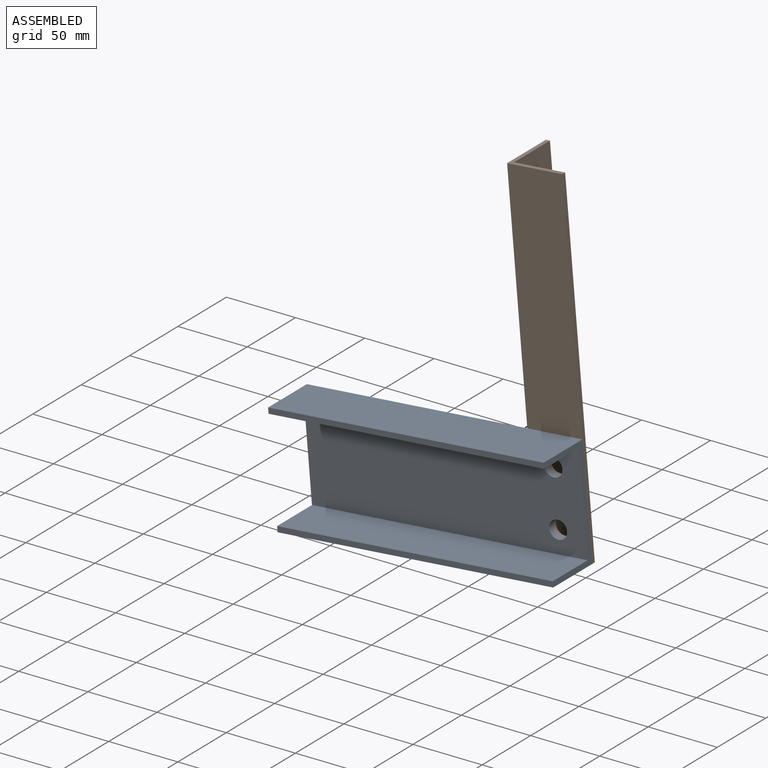
[diagram: assembled view]
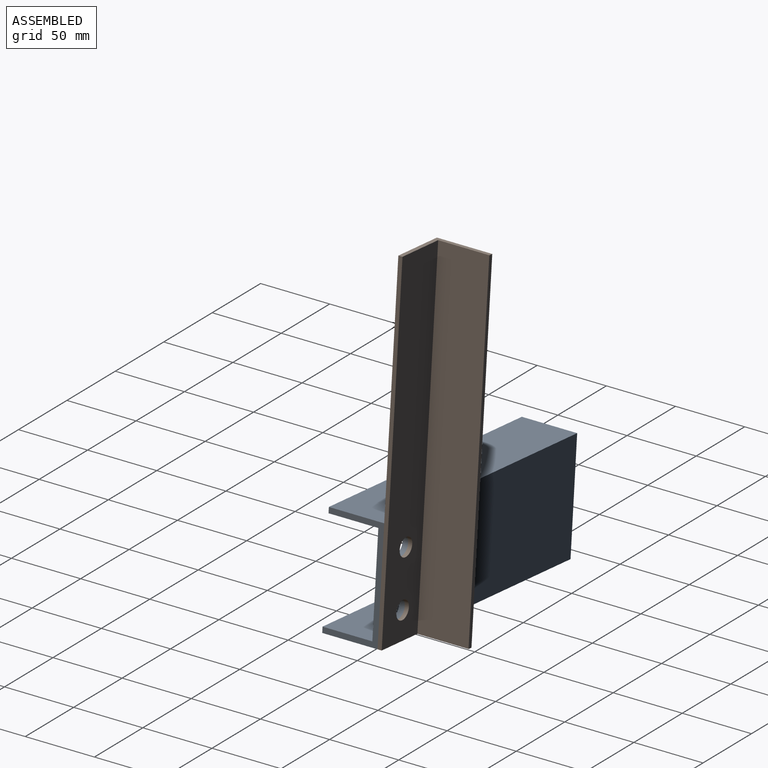
[diagram: assembled view, second angle]
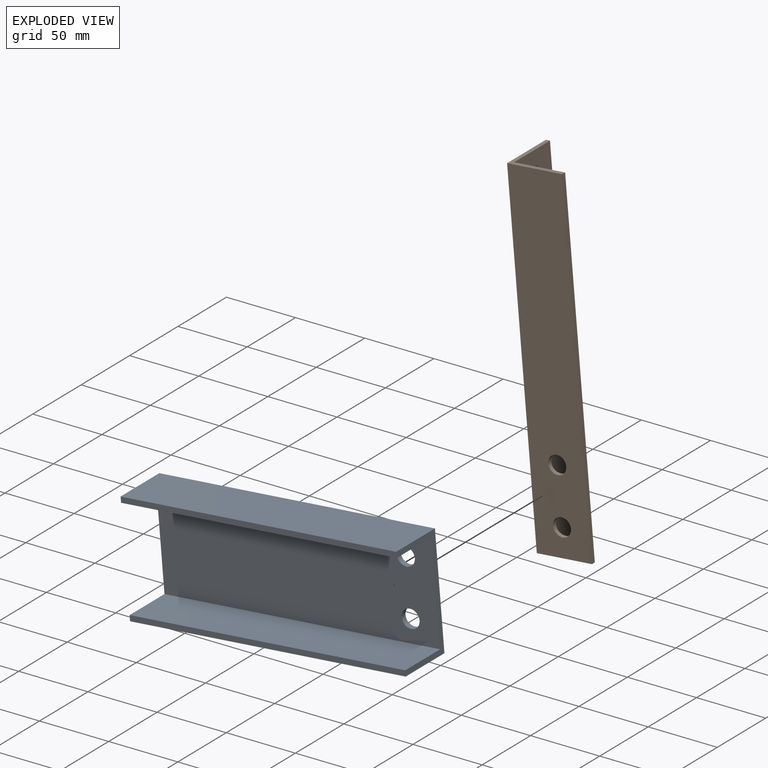
[diagram: exploded view]
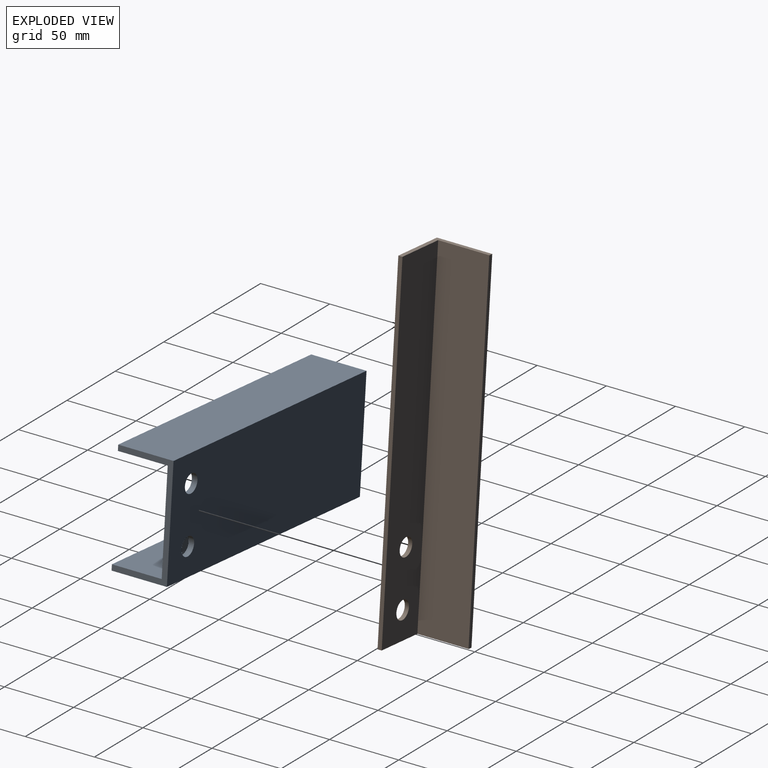
[diagram: exploded view, second angle]
ASSEMBLY  parts=2 mates=2
PART A: 12 faces, bbox 40x200x80 mm
  f0: plane 200x80mm, normal (-1,0,0), area 15734.5mm2, adj f1,f7,f8,f9,f10,f11
  f1: plane 200x40mm, normal (0,0,-1), area 8000mm2, adj f0,f2,f8,f9
  f2: plane 200x4mm, normal (1,0,0), area 800mm2, adj f1,f3,f8,f9
  f3: plane 200x36mm, normal (0,0,1), area 7200mm2, adj f2,f4,f8,f9
  f4: plane 200x72mm, normal (1,0,0), area 14134.5mm2, adj f3,f5,f8,f9,f10,f11
  f5: plane 200x36mm, normal (0,0,-1), area 7200mm2, adj f4,f6,f8,f9
  f6: plane 200x4mm, normal (1,0,0), area 800mm2, adj f5,f7,f8,f9
  f7: plane 200x40mm, normal (0,0,1), area 8000mm2, adj f0,f6,f8,f9
  f8: plane 80x40mm, normal (0,-1,0), area 608mm2, adj f0,f1,f2,f3,f4,f5,f6,f7
  f9: plane 80x40mm, normal (0,1,0), area 608mm2, adj f0,f1,f2,f3,f4,f5,f6,f7
  f10: cylinder r=6.5mm len=13mm, axis (-1,0,0), area 163.4mm2, adj f0,f4
  f11: cylinder r=6.5mm len=13mm, axis (-1,0,0), area 163.4mm2, adj f0,f4
PART B: 10 faces, bbox 40x40x250 mm
  f0: plane 250x40mm, normal (-1,0,0), area 10000mm2, adj f1,f5,f6,f7
  f1: plane 250x40mm, normal (0,-1,0), area 9734.5mm2, adj f0,f2,f6,f7,f8,f9
  f2: plane 250x3mm, normal (1,0,0), area 750mm2, adj f1,f3,f6,f7
  f3: plane 250x37mm, normal (0,1,0), area 8984.5mm2, adj f2,f4,f6,f7,f8,f9
  f4: plane 250x37mm, normal (1,0,0), area 9250mm2, adj f3,f5,f6,f7
  f5: plane 250x3mm, normal (0,1,0), area 750mm2, adj f0,f4,f6,f7
  f6: plane 40x40mm, normal (0,0,1), area 231mm2, adj f0,f1,f2,f3,f4,f5
  f7: plane 40x40mm, normal (0,0,-1), area 231mm2, adj f0,f1,f2,f3,f4,f5
  f8: cylinder r=6.5mm len=13mm, axis (0,-1,0), area 122.5mm2, adj f1,f3
  f9: cylinder r=6.5mm len=13mm, axis (0,-1,0), area 122.5mm2, adj f1,f3
PLACE A rot(axis=(0.04,-0.04,-1),90.1deg) t=(69.5,-21.65,-22.46)mm
PLACE B rot(axis=(0,-1,0),4.9deg) t=(29.65,-21.65,-25.89)mm
MATE planar A.f10 <-> B.f9  axis (0,1,0) through (44.42,-21.65,35.6)mm
MATE fastened A.f10 <-> B.f9  axis (0,-1,0) through (44.42,-25.65,35.6)mm
